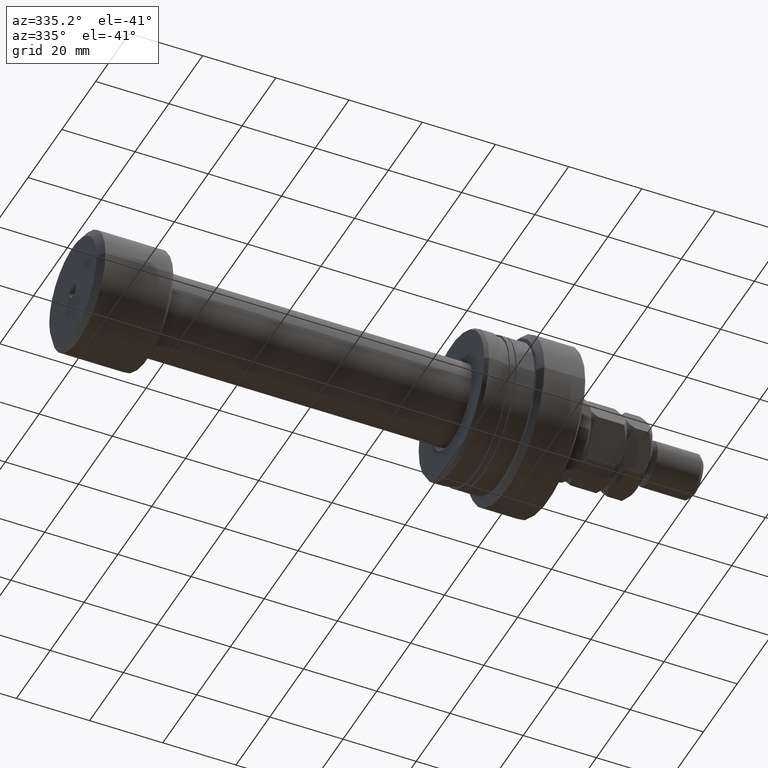
[diagram: clean part render]
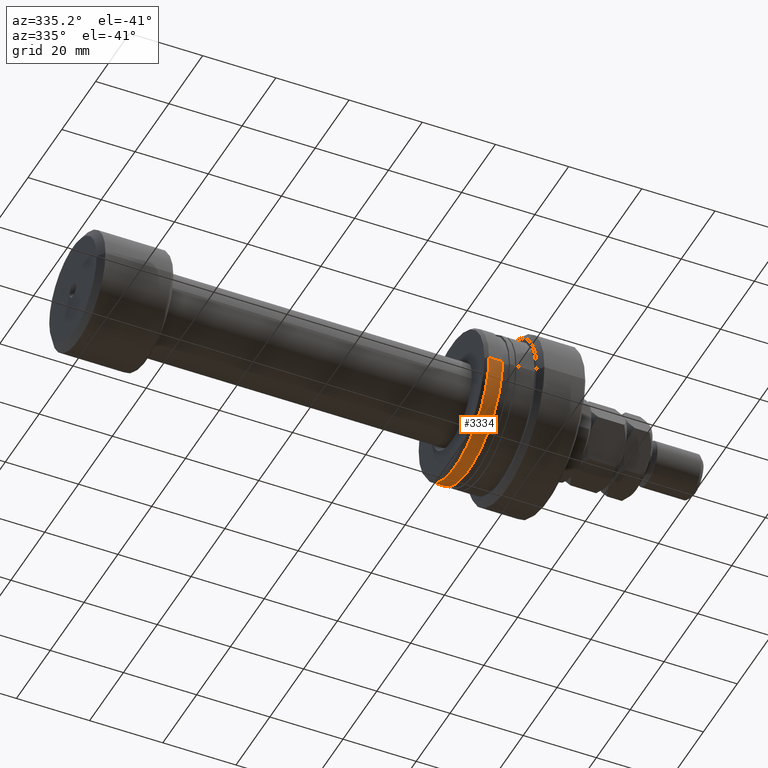
[diagram: same view with one face highlighted and labeled with its STEP entity id]
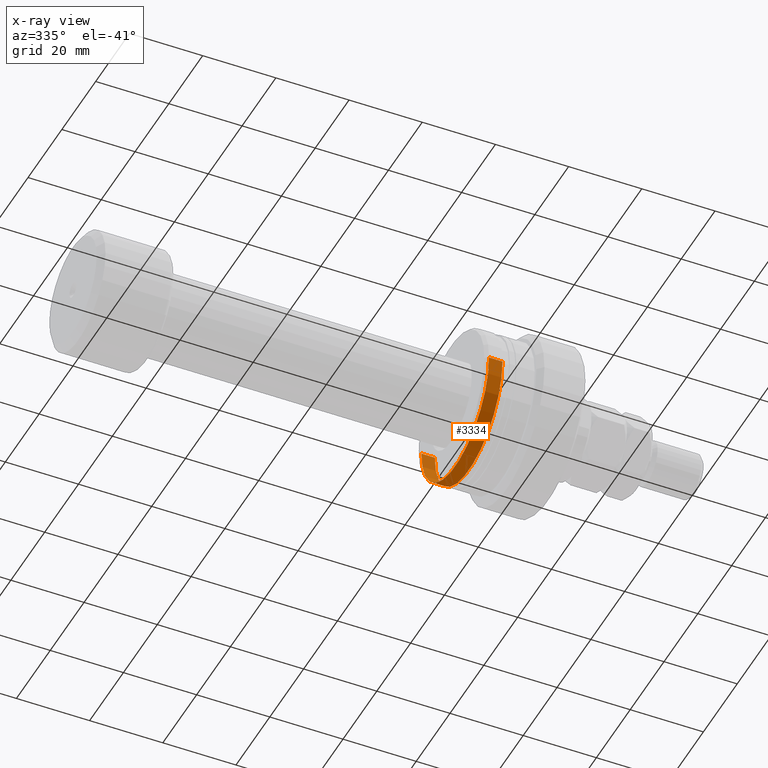
[diagram: x-ray of the same camera — body ghosted, the highlighted face saturated]
A machine part, auxiliary view. The second image highlights one B-rep face of the part: STEP entity #3334.
The next image is the same camera in x-ray: the body ghosted, the highlighted face saturated — about 0% of this face is hidden behind the body in this view.
In plain terms, the highlighted cylindrical surface (partial cylindrical patch) has radius 20 mm, axis along (-1, 0, 0).
Its self-contained STEP definition (entity closure, byte-faithful):
#16 = DIRECTION ( 'NONE',  ( -1.387778780781445873E-15, -1.000000000000000000, 0.000000000000000000 ) ) ;
#64 = VERTEX_POINT ( 'NONE', #2452 ) ;
#108 = AXIS2_PLACEMENT_3D ( 'NONE', #1126, #824, #1183 ) ;
#170 = VERTEX_POINT ( 'NONE', #281 ) ;
#260 = VERTEX_POINT ( 'NONE', #377 ) ;
#281 = CARTESIAN_POINT ( 'NONE',  ( -22.80878161770238322, -20.00000000000000355, 0.000000000000000000 ) ) ;
#340 = DIRECTION ( 'NONE',  ( -1.000000000000000000, 1.333885945136072597E-15, -0.000000000000000000 ) ) ;
#377 = CARTESIAN_POINT ( 'NONE',  ( -26.50000000000012434, 19.99999999999999645, 0.000000000000000000 ) ) ;
#384 = VECTOR ( 'NONE', #2350, 1000.000000000000000 ) ;
#621 = VERTEX_POINT ( 'NONE', #3383 ) ;
#636 = ORIENTED_EDGE ( 'NONE', *, *, #2713, .T. ) ;
#702 = AXIS2_PLACEMENT_3D ( 'NONE', #1234, #3391, #2210 ) ;
#824 = DIRECTION ( 'NONE',  ( -1.000000000000000000, 1.333885945136072597E-15, -0.000000000000000000 ) ) ;
#1100 = LINE ( 'NONE', #2308, #384 ) ;
#1126 = CARTESIAN_POINT ( 'NONE',  ( -22.80878161770235479, -9.965783561673463636E-15, 0.000000000000000000 ) ) ;
#1165 = VECTOR ( 'NONE', #340, 1000.000000000000000 ) ;
#1183 = DIRECTION ( 'NONE',  ( -1.387778780781446267E-15, -1.000000000000000000, 0.000000000000000000 ) ) ;
#1234 = CARTESIAN_POINT ( 'NONE',  ( -26.50000000000015277, -5.042119241098522056E-15, 0.000000000000000000 ) ) ;
#1424 = AXIS2_PLACEMENT_3D ( 'NONE', #2818, #3101, #16 ) ;
#1518 = CARTESIAN_POINT ( 'NONE',  ( -30.28002276692735251, -19.99999999999999645, 0.000000000000000000 ) ) ;
#1540 = CIRCLE ( 'NONE', #702, 20.00000000000000000 ) ;
#2177 = CIRCLE ( 'NONE', #108, 19.99999999999999289 ) ;
#2210 = DIRECTION ( 'NONE',  ( -1.387778780781445676E-15, -1.000000000000000000, 0.000000000000000000 ) ) ;
#2308 = CARTESIAN_POINT ( 'NONE',  ( -30.28002276692729566, 19.99999999999999645, 2.449293598294706119E-15 ) ) ;
#2350 = DIRECTION ( 'NONE',  ( -1.000000000000000000, 1.333885945136072597E-15, -0.000000000000000000 ) ) ;
#2452 = CARTESIAN_POINT ( 'NONE',  ( -22.80878161770232637, 19.99999999999998224, 2.449293598294706119E-15 ) ) ;
#2478 = CYLINDRICAL_SURFACE ( 'NONE', #1424, 19.99999999999999645 ) ;
#2713 = EDGE_CURVE ( 'NONE', #64, #170, #2177, .T. ) ;
#2776 = FACE_OUTER_BOUND ( 'NONE', #4010, .T. ) ;
#2818 = CARTESIAN_POINT ( 'NONE',  ( -30.28002276692732408, 0.000000000000000000, 0.000000000000000000 ) ) ;
#2924 = ORIENTED_EDGE ( 'NONE', *, *, #3058, .F. ) ;
#2932 = ORIENTED_EDGE ( 'NONE', *, *, #3313, .T. ) ;
#3058 = EDGE_CURVE ( 'NONE', #64, #260, #1100, .T. ) ;
#3101 = DIRECTION ( 'NONE',  ( -1.000000000000000000, 1.333885945136072597E-15, -0.000000000000000000 ) ) ;
#3142 = LINE ( 'NONE', #1518, #1165 ) ;
#3304 = EDGE_CURVE ( 'NONE', #260, #621, #1540, .T. ) ;
#3313 = EDGE_CURVE ( 'NONE', #170, #621, #3142, .T. ) ;
#3334 = ADVANCED_FACE ( 'NONE', ( #2776 ), #2478, .T. ) ;
#3383 = CARTESIAN_POINT ( 'NONE',  ( -26.50000000000018119, -20.00000000000000355, 2.449293598294706513E-15 ) ) ;
#3391 = DIRECTION ( 'NONE',  ( -1.000000000000000000, 1.333885945136072597E-15, -0.000000000000000000 ) ) ;
#3564 = ORIENTED_EDGE ( 'NONE', *, *, #3304, .F. ) ;
#4010 = EDGE_LOOP ( 'NONE', ( #2924, #636, #2932, #3564 ) ) ;